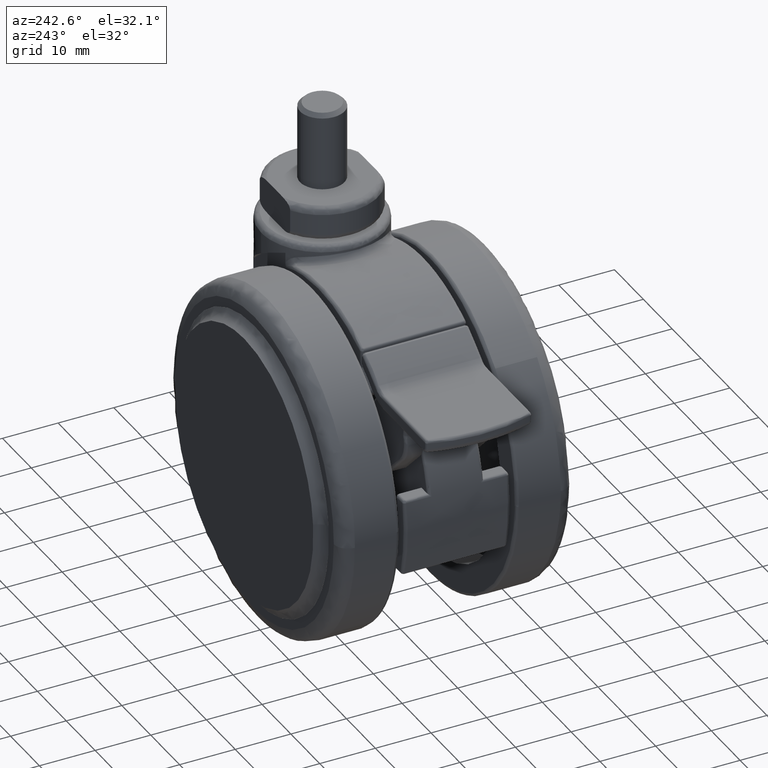
[diagram: clean part render]
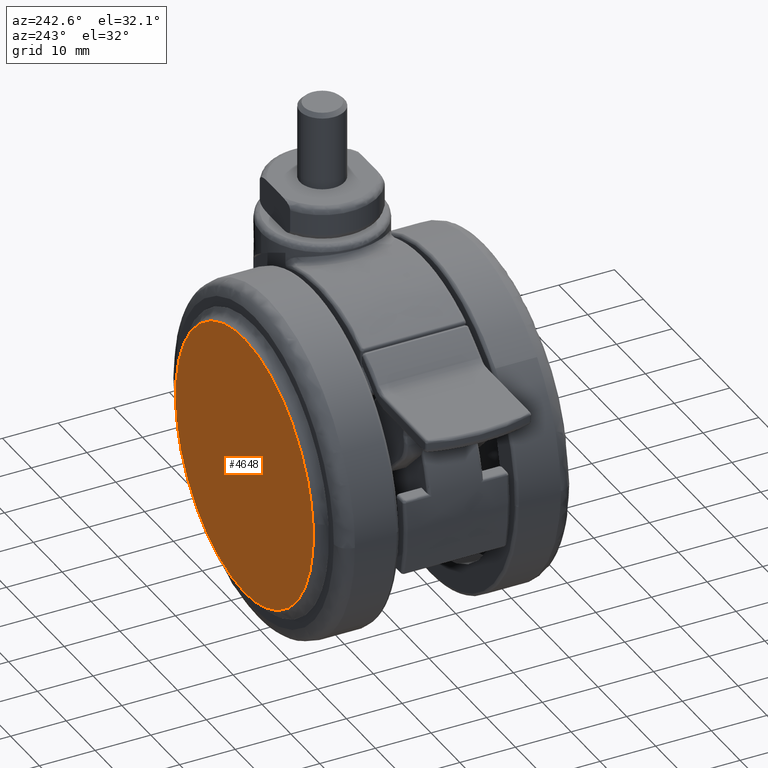
[diagram: same view with one face highlighted and labeled with its STEP entity id]
A machine part, auxiliary view. The second image highlights one B-rep face of the part: STEP entity #4648.
In plain terms, the highlighted face is a freeform B-spline surface patch.
Its self-contained STEP definition (entity closure, byte-faithful):
#4577=CARTESIAN_POINT('',(26.253983298255239,22.800000000000001,-26.260700038385689));
#4578=CARTESIAN_POINT('',(26.253983298255239,22.800000000000001,26.260701319169161));
#4579=CARTESIAN_POINT('',(-26.253983725177669,22.800000000000001,-26.260700038385689));
#4580=CARTESIAN_POINT('',(-26.253983725177669,22.800000000000001,26.260701319169161));
#4581=B_SPLINE_SURFACE_WITH_KNOTS('',1,1,((#4577,#4579),(#4578,#4580)),.UNSPECIFIED.,.F.,.F.,.U.,(2,2),(2,2),(0.0,52.521401357554851),(0.0,52.507967023432911),.UNSPECIFIED.);
#4582=CARTESIAN_POINT('',(23.783222111210389,22.799999999489390,-2.097494252924088));
#4583=VERTEX_POINT('',#4582);
#4584=CARTESIAN_POINT('',(2.792102E-015,22.800000000000001,23.875534258511259));
#4585=VERTEX_POINT('',#4584);
#4586=CARTESIAN_POINT('',(23.783222111210392,22.799999999489387,-2.097494252924089));
#4587=CARTESIAN_POINT('',(23.875534258569957,22.799999999499676,-1.050778486631238));
#4588=CARTESIAN_POINT('',(23.875534258568639,22.799999999510920,-5.057056E-012));
#4589=CARTESIAN_POINT('',(23.875534258538682,22.799999999766211,23.875534258508829));
#4590=CARTESIAN_POINT('',(2.792102E-015,22.800000000000001,23.875534258511259));
#4598=(BOUNDED_CURVE()B_SPLINE_CURVE(2,(#4586,#4587,#4588,#4589,#4590),.UNSPECIFIED.,.F.,.U.)B_SPLINE_CURVE_WITH_KNOTS((3,2,3),(0.734718454855897,0.750000000000000,1.0),.UNSPECIFIED.)CURVE()GEOMETRIC_REPRESENTATION_ITEM()RATIONAL_B_SPLINE_CURVE((0.966381850709618,0.982096556217202,1.0,0.707106781186547,1.0))REPRESENTATION_ITEM(''));
#4599=EDGE_CURVE('',#4583,#4585,#4598,.T.);
#4600=ORIENTED_EDGE('',*,*,#4599,.F.);
#4601=CARTESIAN_POINT('',(2.792102E-015,22.800000000000001,-23.875534258511252));
#4602=VERTEX_POINT('',#4601);
#4603=CARTESIAN_POINT('',(2.792102E-015,22.800000000000001,-23.875534258511252));
#4604=CARTESIAN_POINT('',(21.862569243453571,22.799999999744692,-23.875534258513881));
#4605=CARTESIAN_POINT('',(23.783222111210392,22.799999999489387,-2.097494252924089));
#4613=(BOUNDED_CURVE()B_SPLINE_CURVE(2,(#4603,#4604,#4605),.UNSPECIFIED.,.F.,.U.)B_SPLINE_CURVE_WITH_KNOTS((3,3),(0.500000000000000,0.734718454855897),.UNSPECIFIED.)CURVE()GEOMETRIC_REPRESENTATION_ITEM()RATIONAL_B_SPLINE_CURVE((1.0,0.725010224969346,0.966381850709618))REPRESENTATION_ITEM(''));
#4614=EDGE_CURVE('',#4602,#4583,#4613,.T.);
#4615=ORIENTED_EDGE('',*,*,#4614,.F.);
#4616=CARTESIAN_POINT('',(-23.783222111210382,22.799999999489401,2.097494252924087));
#4617=VERTEX_POINT('',#4616);
#4618=CARTESIAN_POINT('',(-23.783222111210382,22.799999999489398,2.097494252924088));
#4619=CARTESIAN_POINT('',(-23.875534258569946,22.799999999499686,1.050778486631239));
#4620=CARTESIAN_POINT('',(-23.875534258568631,22.799999999510920,5.060183E-012));
#4621=CARTESIAN_POINT('',(-23.875534258538682,22.799999999766225,-23.875534258508829));
#4622=CARTESIAN_POINT('',(2.792102E-015,22.800000000000001,-23.875534258511252));
#4630=(BOUNDED_CURVE()B_SPLINE_CURVE(2,(#4618,#4619,#4620,#4621,#4622),.UNSPECIFIED.,.F.,.U.)B_SPLINE_CURVE_WITH_KNOTS((3,2,3),(0.234718454855897,0.250000000000000,0.500000000000000),.UNSPECIFIED.)CURVE()GEOMETRIC_REPRESENTATION_ITEM()RATIONAL_B_SPLINE_CURVE((0.966381850709618,0.982096556217202,1.0,0.707106781186547,1.0))REPRESENTATION_ITEM(''));
#4631=EDGE_CURVE('',#4617,#4602,#4630,.T.);
#4632=ORIENTED_EDGE('',*,*,#4631,.F.);
#4633=CARTESIAN_POINT('',(2.792102E-015,22.800000000000001,23.875534258511259));
#4634=CARTESIAN_POINT('',(-21.862569243453560,22.799999999744696,23.875534258513884));
#4635=CARTESIAN_POINT('',(-23.783222111210382,22.799999999489398,2.097494252924088));
#4643=(BOUNDED_CURVE()B_SPLINE_CURVE(2,(#4633,#4634,#4635),.UNSPECIFIED.,.F.,.U.)B_SPLINE_CURVE_WITH_KNOTS((3,3),(0.0,0.234718454855897),.UNSPECIFIED.)CURVE()GEOMETRIC_REPRESENTATION_ITEM()RATIONAL_B_SPLINE_CURVE((1.0,0.725010224969346,0.966381850709618))REPRESENTATION_ITEM(''));
#4644=EDGE_CURVE('',#4585,#4617,#4643,.T.);
#4645=ORIENTED_EDGE('',*,*,#4644,.F.);
#4646=EDGE_LOOP('',(#4600,#4615,#4632,#4645));
#4647=FACE_OUTER_BOUND('',#4646,.T.);
#4648=ADVANCED_FACE('',(#4647),#4581,.F.);